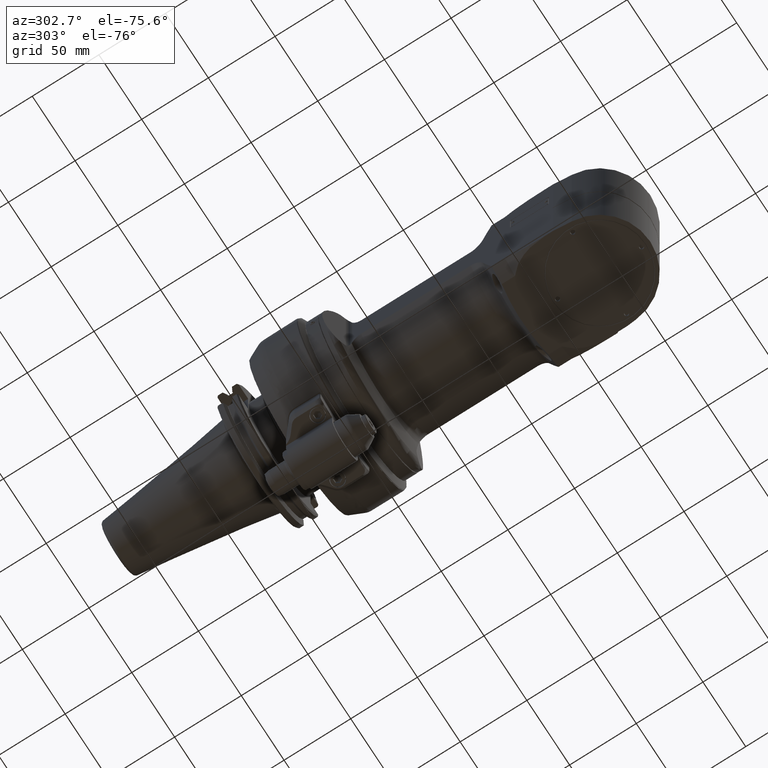
[diagram: clean part render]
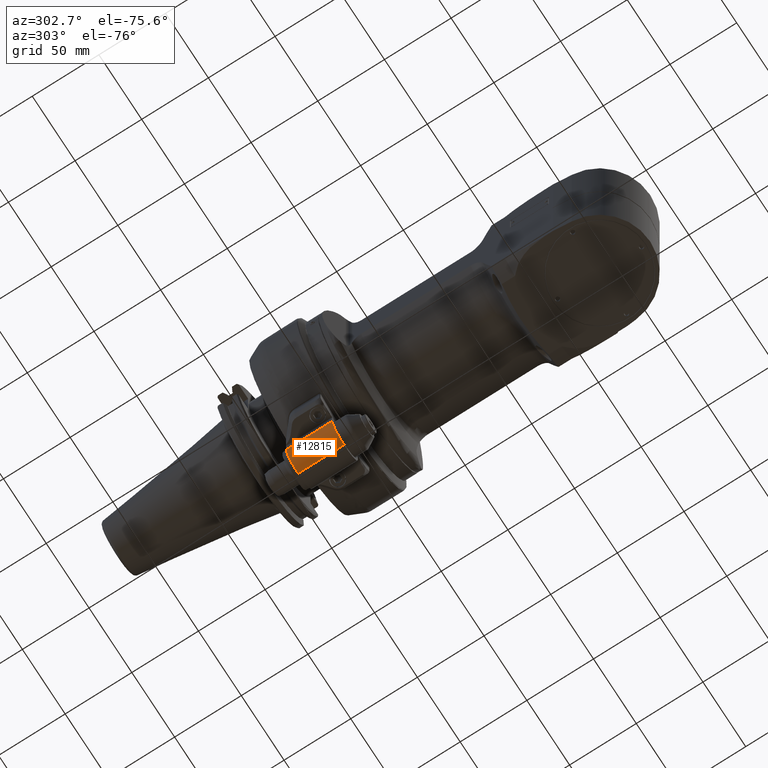
[diagram: same view with one face highlighted and labeled with its STEP entity id]
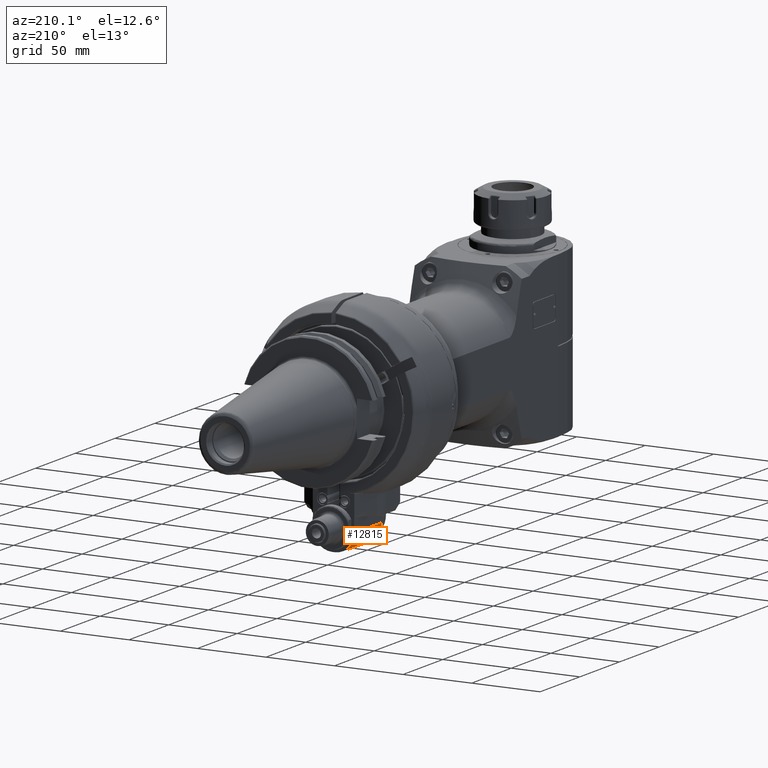
[diagram: same view with one face highlighted and labeled with its STEP entity id]
A machine part, auxiliary view. The second image highlights one B-rep face of the part: STEP entity #12815.
A second angle (auxiliary view) of the same face is appended — the face is thin or edge-on in the first view.
In plain terms, the highlighted cylindrical surface (edge-blend (fillet) strip) has radius 14 mm, axis along (0, -1, 0).
Its self-contained STEP definition (entity closure, byte-faithful):
#536=CYLINDRICAL_SURFACE('',#13923,14.);
#961=CIRCLE('',#13793,14.);
#1019=CIRCLE('',#13899,14.);
#1559=FACE_OUTER_BOUND('',#2263,.T.);
#2263=EDGE_LOOP('',(#9513,#9514,#9515,#9516));
#3261=LINE('',#20260,#4208);
#3262=LINE('',#20262,#4209);
#4208=VECTOR('',#15971,34.5);
#4209=VECTOR('',#15974,34.5);
#5202=VERTEX_POINT('',#19741);
#5203=VERTEX_POINT('',#19743);
#5302=VERTEX_POINT('',#20154);
#5303=VERTEX_POINT('',#20156);
#6721=EDGE_CURVE('',#5202,#5203,#961,.T.);
#6864=EDGE_CURVE('',#5302,#5303,#1019,.T.);
#6904=EDGE_CURVE('',#5302,#5203,#3261,.T.);
#6905=EDGE_CURVE('',#5202,#5303,#3262,.T.);
#9513=ORIENTED_EDGE('',*,*,#6905,.T.);
#9514=ORIENTED_EDGE('',*,*,#6864,.F.);
#9515=ORIENTED_EDGE('',*,*,#6904,.T.);
#9516=ORIENTED_EDGE('',*,*,#6721,.F.);
#12815=ADVANCED_FACE('',(#1559),#536,.T.);
#13793=AXIS2_PLACEMENT_3D('',#19744,#15616,#15617);
#13899=AXIS2_PLACEMENT_3D('',#20157,#15899,#15900);
#13923=AXIS2_PLACEMENT_3D('',#20261,#15972,#15973);
#15616=DIRECTION('center_axis',(-1.,0.,0.));
#15617=DIRECTION('ref_axis',(0.,1.,0.));
#15899=DIRECTION('center_axis',(1.,0.,0.));
#15900=DIRECTION('ref_axis',(0.,0.,-1.));
#15971=DIRECTION('',(-1.,0.,0.));
#15972=DIRECTION('center_axis',(1.,0.,0.));
#15973=DIRECTION('ref_axis',(0.,1.,0.));
#15974=DIRECTION('',(1.,0.,0.));
#19741=CARTESIAN_POINT('',(-51.5,81.25,-1.));
#19743=CARTESIAN_POINT('',(-51.5,67.25,-15.));
#19744=CARTESIAN_POINT('Origin',(-51.5,67.25,-1.));
#20154=CARTESIAN_POINT('',(-17.,67.25,-15.));
#20156=CARTESIAN_POINT('',(-17.,81.25,-1.));
#20157=CARTESIAN_POINT('Origin',(-17.,67.25,-1.));
#20260=CARTESIAN_POINT('',(-17.,67.25,-15.));
#20261=CARTESIAN_POINT('Origin',(-43.,67.25,-1.));
#20262=CARTESIAN_POINT('',(-51.5,81.25,-1.));